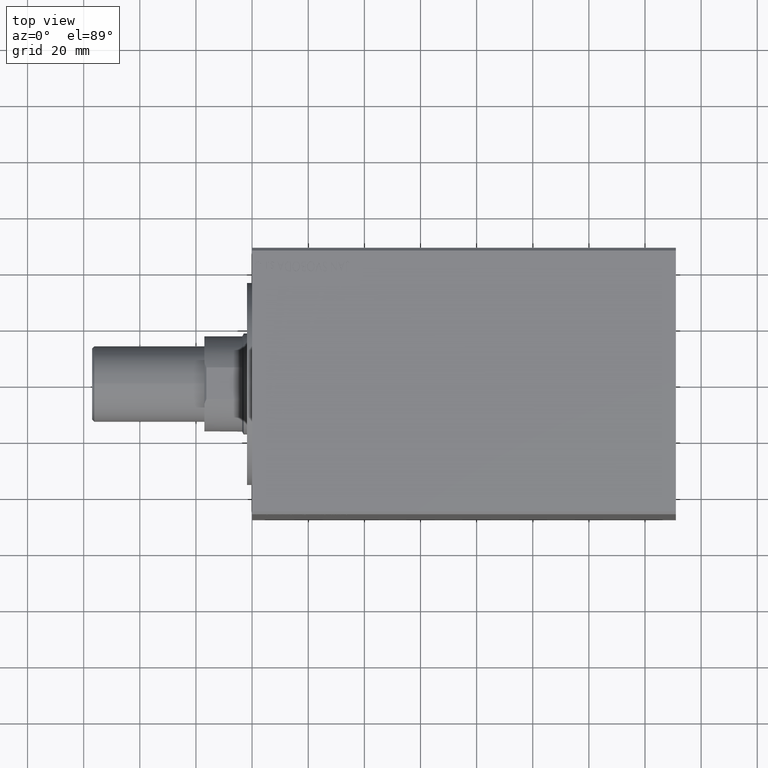
[diagram: clean part render]
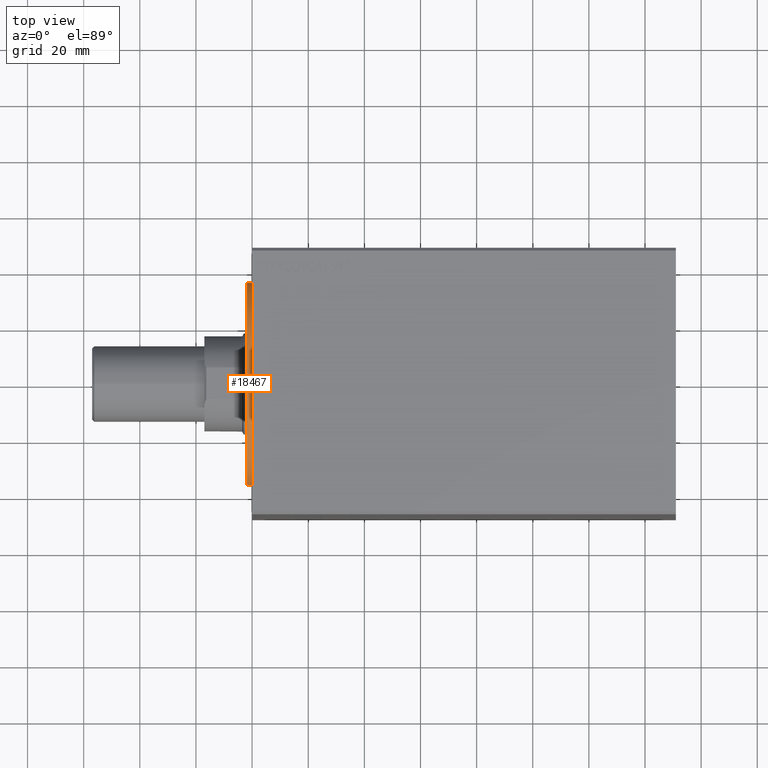
[diagram: same view with one face highlighted and labeled with its STEP entity id]
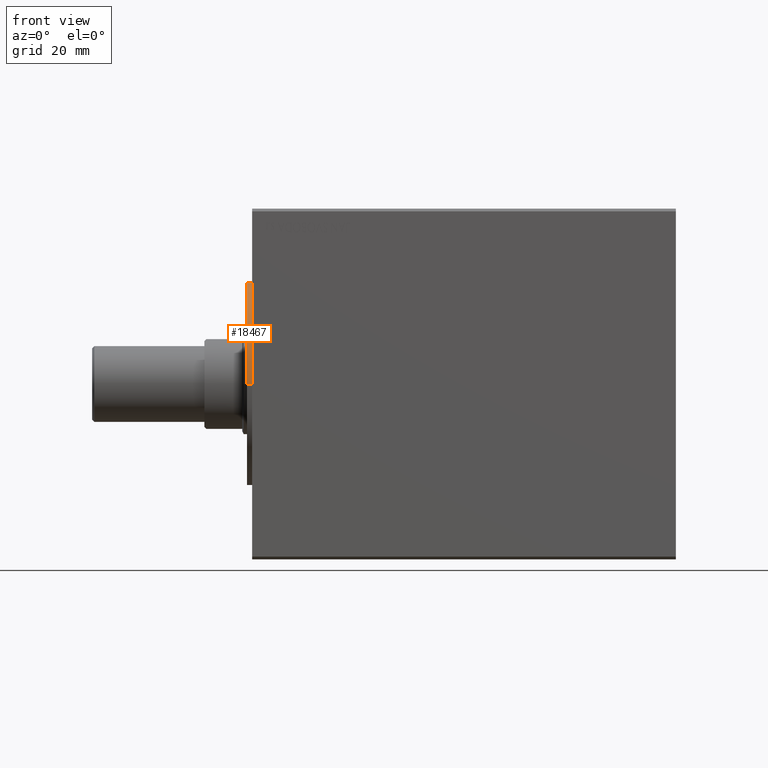
[diagram: same view with one face highlighted and labeled with its STEP entity id]
A machine part, top view. The second image highlights one B-rep face of the part: STEP entity #18467.
A second angle (front view) of the same face is appended — the face is thin or edge-on in the first view.
In plain terms, the highlighted cylindrical surface (partial cylindrical patch) has radius 36 mm, axis along (1, -0, 0).
Its self-contained STEP definition (entity closure, byte-faithful):
#1981 = CIRCLE ( 'NONE', #34077, 36.00000000000000000 ) ;
#2051 = CARTESIAN_POINT ( 'NONE',  ( 36.00000000000000000, 4.408728476930470856E-15, 11.79999999999999893 ) ) ;
#2903 = CARTESIAN_POINT ( 'NONE',  ( 0.000000000000000000, 0.000000000000000000, 11.79999999999999893 ) ) ;
#9014 = CYLINDRICAL_SURFACE ( 'NONE', #40557, 36.00000000000000000 ) ;
#10281 = ORIENTED_EDGE ( 'NONE', *, *, #16116, .T. ) ;
#10569 = EDGE_CURVE ( 'NONE', #32273, #31883, #23015, .T. ) ;
#11848 = CARTESIAN_POINT ( 'NONE',  ( 0.000000000000000000, 0.000000000000000000, 10.00000000000000000 ) ) ;
#12378 = DIRECTION ( 'NONE',  ( -0.000000000000000000, -0.000000000000000000, -1.000000000000000000 ) ) ;
#12504 = DIRECTION ( 'NONE',  ( -0.000000000000000000, -0.000000000000000000, -1.000000000000000000 ) ) ;
#15188 = DIRECTION ( 'NONE',  ( 0.000000000000000000, 0.000000000000000000, 1.000000000000000000 ) ) ;
#15290 = ORIENTED_EDGE ( 'NONE', *, *, #10569, .F. ) ;
#15836 = LINE ( 'NONE', #29451, #25231 ) ;
#16116 = EDGE_CURVE ( 'NONE', #33369, #31883, #20528, .T. ) ;
#18467 = ADVANCED_FACE ( 'NONE', ( #29546 ), #9014, .T. ) ;
#19611 = EDGE_CURVE ( 'NONE', #40450, #32273, #1981, .T. ) ;
#20108 = ORIENTED_EDGE ( 'NONE', *, *, #19611, .F. ) ;
#20528 = CIRCLE ( 'NONE', #36921, 36.00000000000000000 ) ;
#21593 = CARTESIAN_POINT ( 'NONE',  ( 36.00000000000000000, 4.408728476930470856E-15, 10.00000000000000000 ) ) ;
#23015 = LINE ( 'NONE', #2051, #39492 ) ;
#25231 = VECTOR ( 'NONE', #12504, 1000.000000000000000 ) ;
#25939 = DIRECTION ( 'NONE',  ( -0.000000000000000000, -0.000000000000000000, -1.000000000000000000 ) ) ;
#27117 = EDGE_CURVE ( 'NONE', #40450, #33369, #15836, .T. ) ;
#27366 = EDGE_LOOP ( 'NONE', ( #15290, #20108, #37533, #10281 ) ) ;
#29281 = DIRECTION ( 'NONE',  ( 1.000000000000000000, 0.000000000000000000, 0.000000000000000000 ) ) ;
#29451 = CARTESIAN_POINT ( 'NONE',  ( -36.00000000000000000, 0.000000000000000000, 11.79999999999999893 ) ) ;
#29542 = CARTESIAN_POINT ( 'NONE',  ( -36.00000000000000000, 0.000000000000000000, 11.79999999999999893 ) ) ;
#29546 = FACE_OUTER_BOUND ( 'NONE', #27366, .T. ) ;
#29765 = DIRECTION ( 'NONE',  ( -1.000000000000000000, 0.000000000000000000, 0.000000000000000000 ) ) ;
#30944 = CARTESIAN_POINT ( 'NONE',  ( -36.00000000000000000, 0.000000000000000000, 10.00000000000000000 ) ) ;
#31883 = VERTEX_POINT ( 'NONE', #21593 ) ;
#32273 = VERTEX_POINT ( 'NONE', #32706 ) ;
#32706 = CARTESIAN_POINT ( 'NONE',  ( 36.00000000000000000, 4.408728476930470856E-15, 11.79999999999999893 ) ) ;
#33369 = VERTEX_POINT ( 'NONE', #30944 ) ;
#34077 = AXIS2_PLACEMENT_3D ( 'NONE', #2903, #43557, #29281 ) ;
#36921 = AXIS2_PLACEMENT_3D ( 'NONE', #11848, #15188, #38848 ) ;
#37533 = ORIENTED_EDGE ( 'NONE', *, *, #27117, .T. ) ;
#38848 = DIRECTION ( 'NONE',  ( 1.000000000000000000, 0.000000000000000000, 0.000000000000000000 ) ) ;
#39492 = VECTOR ( 'NONE', #25939, 1000.000000000000000 ) ;
#40450 = VERTEX_POINT ( 'NONE', #29542 ) ;
#40557 = AXIS2_PLACEMENT_3D ( 'NONE', #43165, #12378, #29765 ) ;
#43165 = CARTESIAN_POINT ( 'NONE',  ( 0.000000000000000000, 0.000000000000000000, 11.79999999999999893 ) ) ;
#43557 = DIRECTION ( 'NONE',  ( 0.000000000000000000, 0.000000000000000000, 1.000000000000000000 ) ) ;